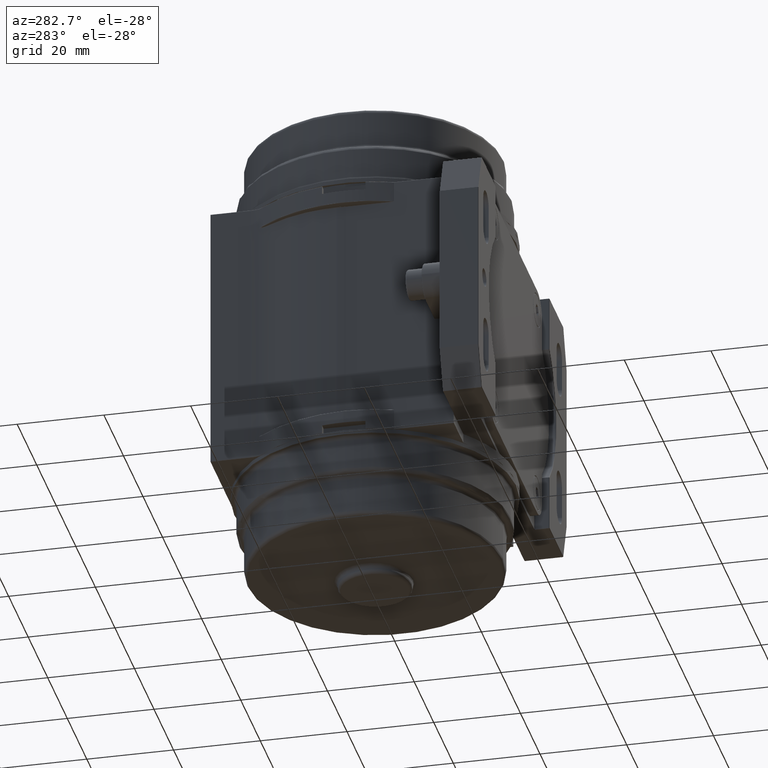
[diagram: clean part render]
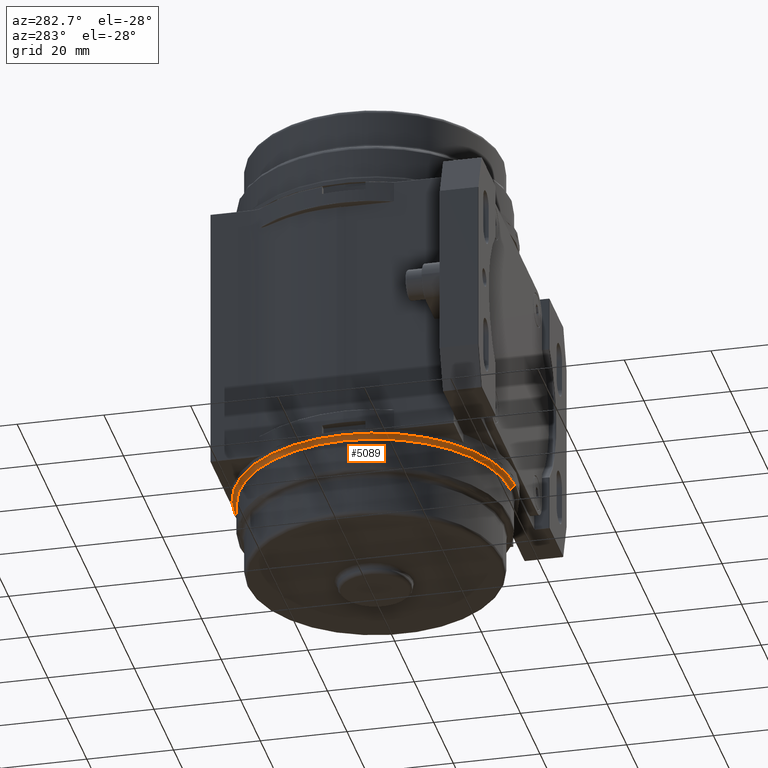
[diagram: same view with one face highlighted and labeled with its STEP entity id]
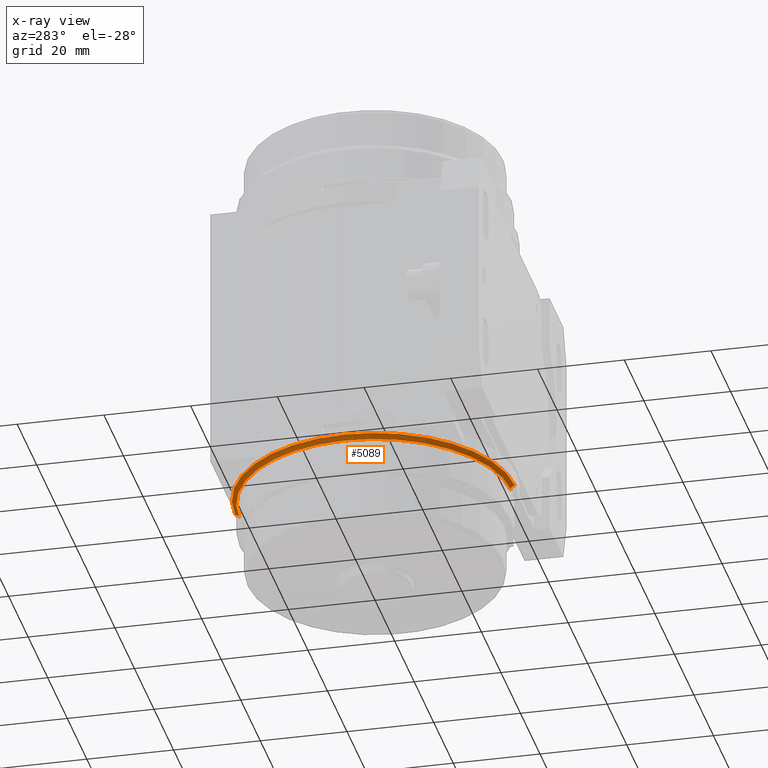
[diagram: x-ray of the same camera — body ghosted, the highlighted face saturated]
A machine part, auxiliary view. The second image highlights one B-rep face of the part: STEP entity #5089.
The next image is the same camera in x-ray: the body ghosted, the highlighted face saturated — about 0% of this face is hidden behind the body in this view.
In plain terms, the highlighted toroidal blend (fillet) surface has major radius 32.25 mm and minor (blend) radius 1 mm.
Its self-contained STEP definition (entity closure, byte-faithful):
#345 = EDGE_CURVE ( 'NONE', #6842, #22558, #21161, .T. ) ;
#759 = AXIS2_PLACEMENT_3D ( 'NONE', #11860, #15897, #12033 ) ;
#2529 = CARTESIAN_POINT ( 'NONE',  ( -2.774295482471481000E-016, 32.22750000000000600, -32.50000000000000000 ) ) ;
#2972 = EDGE_CURVE ( 'NONE', #16625, #6842, #15076, .T. ) ;
#3773 = EDGE_CURVE ( 'NONE', #16625, #6178, #15405, .T. ) ;
#4370 = DIRECTION ( 'NONE',  ( -0.0000000000000000000, -0.0000000000000000000, -1.000000000000000000 ) ) ;
#4932 = CARTESIAN_POINT ( 'NONE',  ( -2.688270816348334200E-016, 31.22750000000000600, -33.50000000000000000 ) ) ;
#4997 = EDGE_CURVE ( 'NONE', #22558, #6178, #23752, .T. ) ;
#5064 = CARTESIAN_POINT ( 'NONE',  ( -3.558194165700645300E-015, -31.27249999999999400, -33.50000000000000000 ) ) ;
#5089 = ADVANCED_FACE ( 'NONE', ( #14730 ), #14150, .F. ) ;
#6178 = VERTEX_POINT ( 'NONE', #4932 ) ;
#6529 = ORIENTED_EDGE ( 'NONE', *, *, #3773, .T. ) ;
#6842 = VERTEX_POINT ( 'NONE', #23073 ) ;
#7084 = DIRECTION ( 'NONE',  ( 0.0000000000000000000, 0.0000000000000000000, 1.000000000000000000 ) ) ;
#8221 = DIRECTION ( 'NONE',  ( -8.602466612314669600E-018, 1.000000000000000000, 0.0000000000000000000 ) ) ;
#8679 = ORIENTED_EDGE ( 'NONE', *, *, #2972, .F. ) ;
#10039 = AXIS2_PLACEMENT_3D ( 'NONE', #10076, #19831, #21870 ) ;
#10076 = CARTESIAN_POINT ( 'NONE',  ( -3.672056379003065800E-015, -32.27249999999999400, -33.50000000000000000 ) ) ;
#11394 = AXIS2_PLACEMENT_3D ( 'NONE', #24624, #7084, #22488 ) ;
#11422 = DIRECTION ( 'NONE',  ( -8.602466612314669600E-018, 1.000000000000000000, 0.0000000000000000000 ) ) ;
#11860 = CARTESIAN_POINT ( 'NONE',  ( -2.774295482471481000E-016, 32.22750000000000600, -33.50000000000000000 ) ) ;
#12033 = DIRECTION ( 'NONE',  ( -8.602466612314671200E-018, 1.000000000000000000, 0.0000000000000000000 ) ) ;
#13985 = CARTESIAN_POINT ( 'NONE',  ( 0.0000000000000000000, -0.02249999999999475000, -33.50000000000000000 ) ) ;
#14150 = TOROIDAL_SURFACE ( 'NONE', #11394, 32.25000000000000000, 1.000000000000000000 ) ;
#14730 = FACE_OUTER_BOUND ( 'NONE', #19100, .T. ) ;
#15076 = CIRCLE ( 'NONE', #16980, 32.25000000000000000 ) ;
#15405 = CIRCLE ( 'NONE', #759, 1.000000000000000900 ) ;
#15897 = DIRECTION ( 'NONE',  ( 1.000000000000000000, 8.602466612314669600E-018, -0.0000000000000000000 ) ) ;
#16625 = VERTEX_POINT ( 'NONE', #2529 ) ;
#16980 = AXIS2_PLACEMENT_3D ( 'NONE', #22919, #17055, #11422 ) ;
#17055 = DIRECTION ( 'NONE',  ( 0.0000000000000000000, 0.0000000000000000000, 1.000000000000000000 ) ) ;
#17098 = ORIENTED_EDGE ( 'NONE', *, *, #4997, .F. ) ;
#18619 = AXIS2_PLACEMENT_3D ( 'NONE', #13985, #4370, #8221 ) ;
#19100 = EDGE_LOOP ( 'NONE', ( #23502, #8679, #6529, #17098 ) ) ;
#19831 = DIRECTION ( 'NONE',  ( -1.000000000000000000, 1.138622133024206500E-016, 0.0000000000000000000 ) ) ;
#21161 = CIRCLE ( 'NONE', #10039, 1.000000000000000900 ) ;
#21870 = DIRECTION ( 'NONE',  ( -1.138622133024203300E-016, -1.000000000000000000, 0.0000000000000000000 ) ) ;
#22488 = DIRECTION ( 'NONE',  ( -8.602466612314669600E-018, 1.000000000000000000, 0.0000000000000000000 ) ) ;
#22558 = VERTEX_POINT ( 'NONE', #5064 ) ;
#22919 = CARTESIAN_POINT ( 'NONE',  ( 0.0000000000000000000, -0.02249999999999475000, -32.50000000000000000 ) ) ;
#23073 = CARTESIAN_POINT ( 'NONE',  ( -3.672056379003065800E-015, -32.27249999999999400, -32.50000000000000000 ) ) ;
#23502 = ORIENTED_EDGE ( 'NONE', *, *, #345, .F. ) ;
#23752 = CIRCLE ( 'NONE', #18619, 31.25000000000000000 ) ;
#24624 = CARTESIAN_POINT ( 'NONE',  ( 0.0000000000000000000, -0.02249999999999475000, -33.50000000000000000 ) ) ;